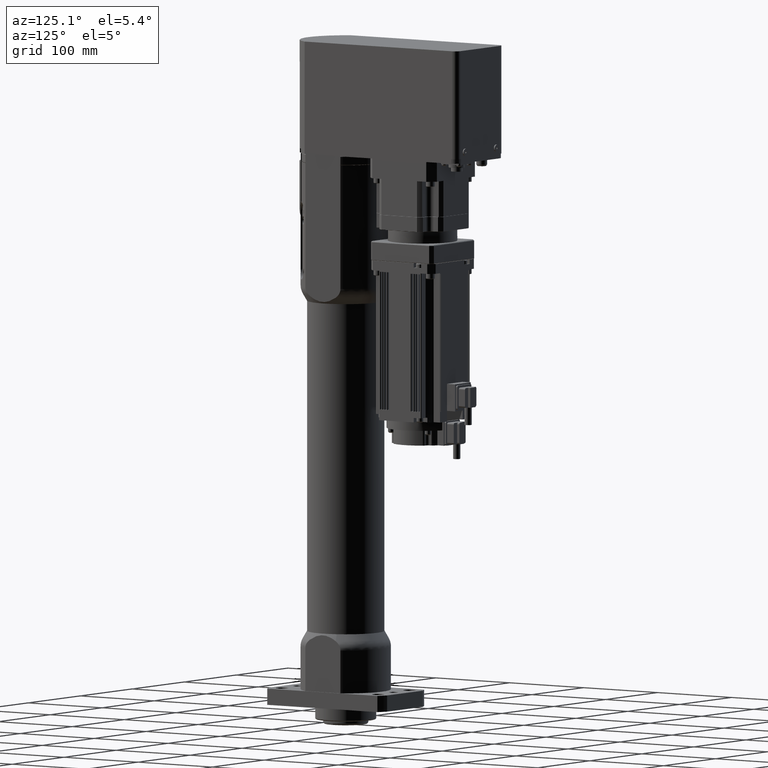
[diagram: clean part render]
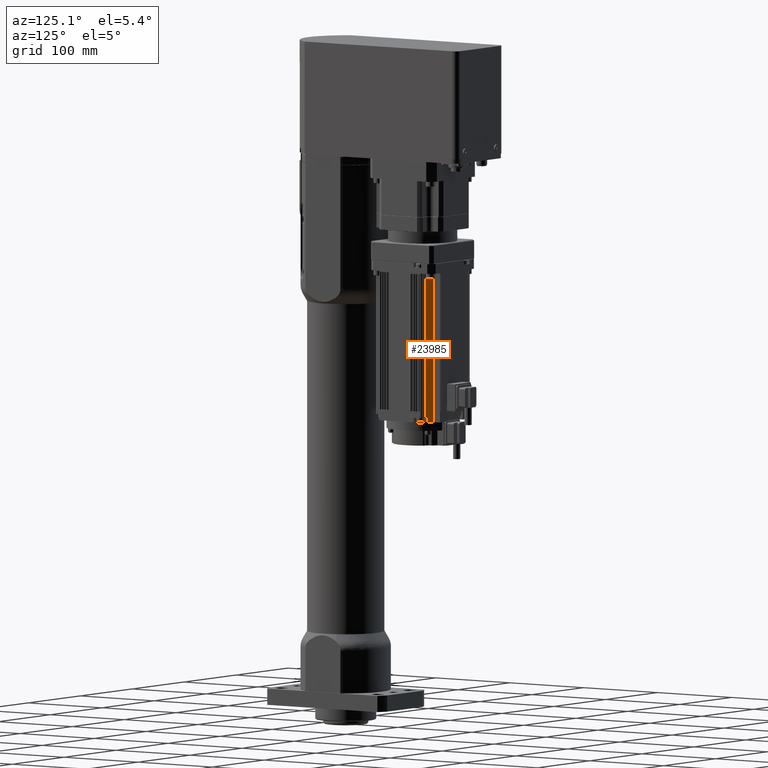
[diagram: same view with one face highlighted and labeled with its STEP entity id]
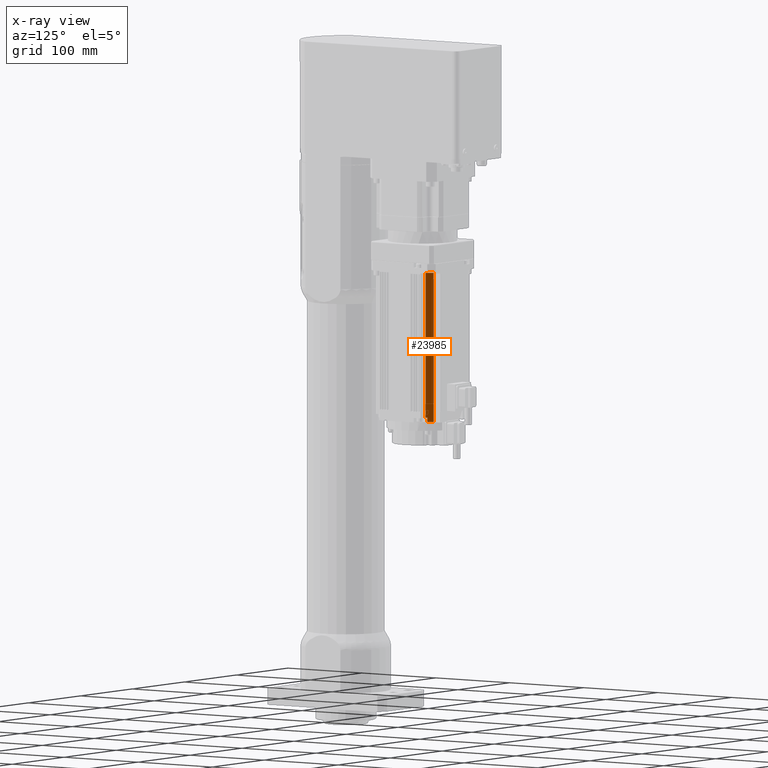
[diagram: x-ray of the same camera — body ghosted, the highlighted face saturated]
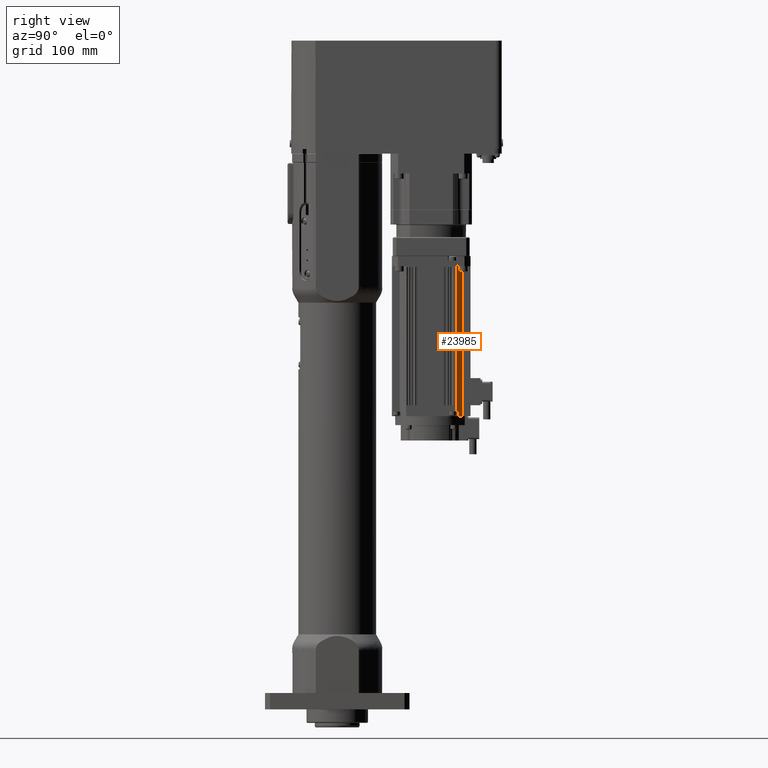
[diagram: same view with one face highlighted and labeled with its STEP entity id]
A machine part, auxiliary view. The second image highlights one B-rep face of the part: STEP entity #23985.
The next image is the same camera in x-ray: the body ghosted, the highlighted face saturated — about 0% of this face is hidden behind the body in this view.
A second angle (right view) of the same face is appended — the face is thin or edge-on in the first view.
In plain terms, the highlighted cylindrical surface (partial cylindrical patch) has radius 45 mm, axis along (-0, -0, -1).
Its self-contained STEP definition (entity closure, byte-faithful):
#923=LINE('',#36178,#2678);
#1245=LINE('',#37701,#3000);
#1471=LINE('',#38318,#3226);
#1472=LINE('',#38321,#3227);
#2678=VECTOR('',#28679,10.);
#3000=VECTOR('',#30009,10.);
#3226=VECTOR('',#30541,10.);
#3227=VECTOR('',#30544,10.);
#5839=FACE_OUTER_BOUND('',#7329,.T.);
#7329=EDGE_LOOP('',(#17632,#17633,#17634,#17635,#17636,#17637,#17638,#17639,
#17640));
#8662=CIRCLE('',#25364,45.);
#8663=CIRCLE('',#25365,45.);
#8985=CIRCLE('',#26012,45.);
#8986=CIRCLE('',#26013,45.);
#10020=VERTEX_POINT('',#36157);
#10028=VERTEX_POINT('',#36175);
#10036=VERTEX_POINT('',#36218);
#10037=VERTEX_POINT('',#36221);
#10414=VERTEX_POINT('',#37699);
#10651=VERTEX_POINT('',#38315);
#10652=VERTEX_POINT('',#38317);
#10653=VERTEX_POINT('',#38319);
#12390=EDGE_CURVE('',#10020,#10028,#923,.T.);
#12404=EDGE_CURVE('',#10036,#10028,#8662,.T.);
#12405=EDGE_CURVE('',#10028,#10037,#8663,.T.);
#13004=EDGE_CURVE('',#10036,#10414,#1245,.T.);
#13309=EDGE_CURVE('',#10414,#10651,#8985,.T.);
#13310=EDGE_CURVE('',#10651,#10652,#1471,.T.);
#13311=EDGE_CURVE('',#10653,#10652,#8986,.T.);
#13312=EDGE_CURVE('',#10037,#10653,#1472,.T.);
#17632=ORIENTED_EDGE('',*,*,#13309,.T.);
#17633=ORIENTED_EDGE('',*,*,#13310,.T.);
#17634=ORIENTED_EDGE('',*,*,#13311,.F.);
#17635=ORIENTED_EDGE('',*,*,#13312,.F.);
#17636=ORIENTED_EDGE('',*,*,#12405,.F.);
#17637=ORIENTED_EDGE('',*,*,#12390,.F.);
#17638=ORIENTED_EDGE('',*,*,#12390,.T.);
#17639=ORIENTED_EDGE('',*,*,#12404,.F.);
#17640=ORIENTED_EDGE('',*,*,#13004,.T.);
#21845=CYLINDRICAL_SURFACE('',#26011,45.);
#23985=ADVANCED_FACE('',(#5839),#21845,.T.);
#25364=AXIS2_PLACEMENT_3D('',#36220,#28703,#28704);
#25365=AXIS2_PLACEMENT_3D('',#36222,#28705,#28706);
#26011=AXIS2_PLACEMENT_3D('',#38314,#30537,#30538);
#26012=AXIS2_PLACEMENT_3D('',#38316,#30539,#30540);
#26013=AXIS2_PLACEMENT_3D('',#38320,#30542,#30543);
#28679=DIRECTION('',(2.09565980378904E-13,1.39305307970001E-14,1.));
#28703=DIRECTION('center_axis',(1.83881657815785E-13,1.16659582020141E-14,
1.));
#28704=DIRECTION('ref_axis',(0.256038191595622,0.966666666666666,-5.83578200633723E-14));
#28705=DIRECTION('center_axis',(1.83881657815785E-13,1.16659582020141E-14,
1.));
#28706=DIRECTION('ref_axis',(0.256038191595622,0.966666666666666,-5.83578200633723E-14));
#30009=DIRECTION('',(-1.83881657815785E-13,-1.16659582020141E-14,-1.));
#30537=DIRECTION('center_axis',(-1.83881657815785E-13,-1.16659582020141E-14,
-1.));
#30538=DIRECTION('ref_axis',(0.256038191595622,0.966666666666666,-5.83578200633723E-14));
#30539=DIRECTION('center_axis',(1.83881657815785E-13,1.16659582020141E-14,
1.));
#30540=DIRECTION('ref_axis',(0.256038191595622,0.966666666666666,-5.83578200633723E-14));
#30541=DIRECTION('',(-1.83881657815785E-13,-1.16659582020141E-14,-1.));
#30542=DIRECTION('center_axis',(-1.83881657815785E-13,-1.16659582020141E-14,
-1.));
#30543=DIRECTION('ref_axis',(0.633333333333337,0.773879117749591,-1.25486424724409E-13));
#30544=DIRECTION('',(-1.83881657815785E-13,-1.16659582020141E-14,-1.));
#36157=CARTESIAN_POINT('',(31.8198051534863,135.819805153402,485.099999999991));
#36175=CARTESIAN_POINT('',(31.8198051534874,135.819805153403,490.499999999991));
#36178=CARTESIAN_POINT('',(31.8198051534867,135.819805153403,487.499999999991));
#36218=CARTESIAN_POINT('',(34.8245602988137,132.500000000007,490.499999999992));
#36220=CARTESIAN_POINT('Origin',(8.1887475010585E-11,104.000000000008,490.499999999999));
#36221=CARTESIAN_POINT('',(28.500000000082,138.824560298739,490.499999999993));
#36222=CARTESIAN_POINT('Origin',(8.1887475010585E-11,104.000000000008,490.499999999999));
#37699=CARTESIAN_POINT('',(34.8245602987841,132.500000000006,329.499999999992));
#37701=CARTESIAN_POINT('',(34.8245602988137,132.500000000007,490.499999999992));
#38314=CARTESIAN_POINT('Origin',(8.1887475010585E-11,104.000000000008,490.499999999999));
#38315=CARTESIAN_POINT('',(33.5000000000524,134.045798375153,329.499999999992));
#38316=CARTESIAN_POINT('Origin',(5.22825281022436E-11,104.000000000006,
329.499999999999));
#38317=CARTESIAN_POINT('',(33.5000000000515,134.045798375153,324.499999999992));
#38318=CARTESIAN_POINT('',(33.500000000082,134.045798375155,490.499999999992));
#38319=CARTESIAN_POINT('',(28.5000000000515,138.824560298737,324.499999999993));
#38320=CARTESIAN_POINT('Origin',(5.13631198131646E-11,104.000000000006,
324.499999999999));
#38321=CARTESIAN_POINT('',(28.500000000082,138.824560298739,490.499999999993));